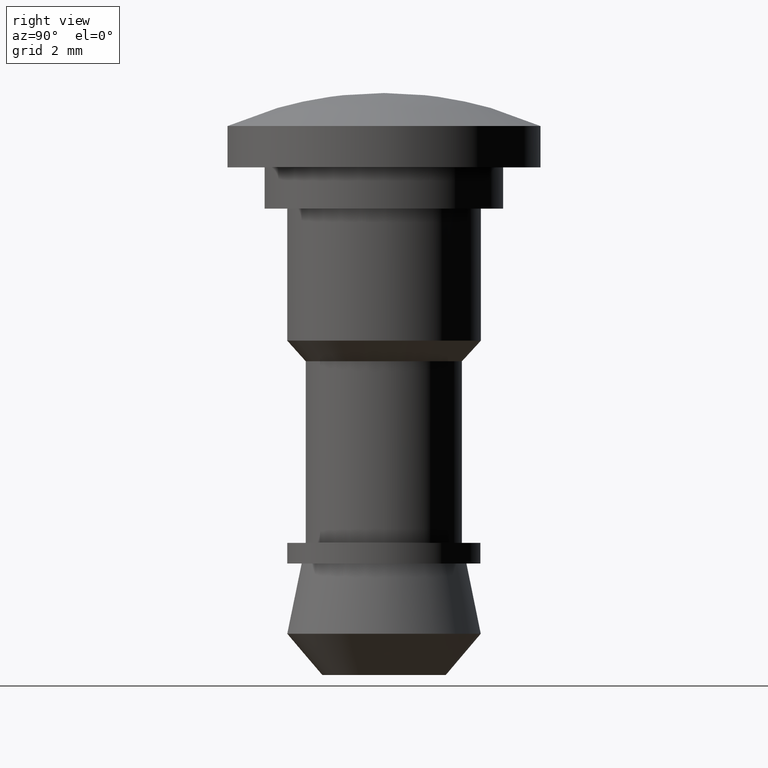
[diagram: clean part render]
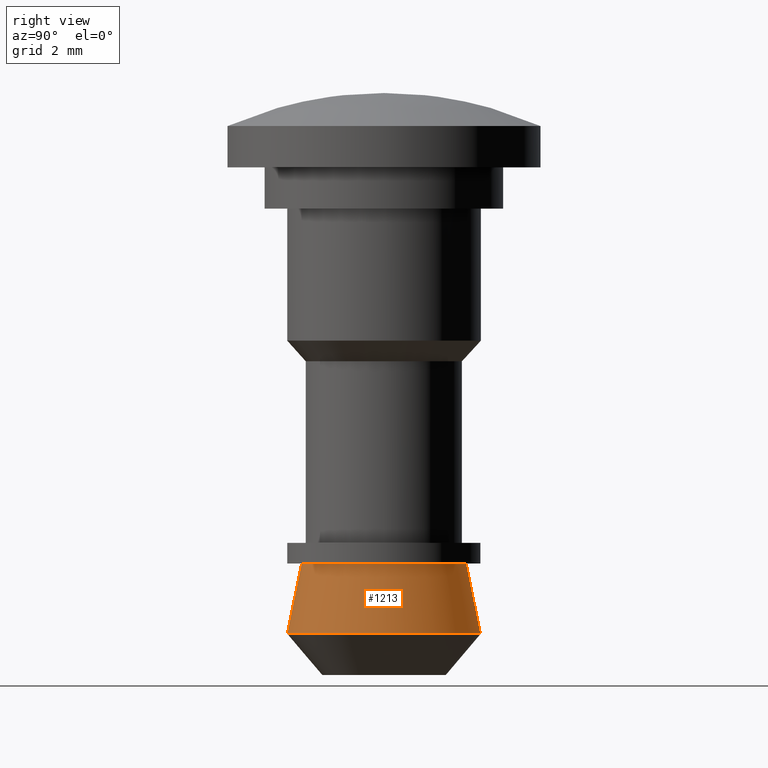
[diagram: same view with one face highlighted and labeled with its STEP entity id]
A machine part, right view. The second image highlights one B-rep face of the part: STEP entity #1213.
In plain terms, the highlighted face is a freeform B-spline surface patch.
Its self-contained STEP definition (entity closure, byte-faithful):
#1104=CARTESIAN_POINT('',(0.227203004284344,1.978246015710509,-8.557502367688132));
#1105=CARTESIAN_POINT('',(1.885626516785236,1.787774860240664,-8.557502367688132));
#1106=CARTESIAN_POINT('',(1.987536403913507,0.121562934107822,-8.557502367688132));
#1107=CARTESIAN_POINT('',(2.109099338021329,-1.865973469805685,-8.557502367688132));
#1108=CARTESIAN_POINT('',(0.121562934107822,-1.987536403913507,-8.557502367688132));
#1109=CARTESIAN_POINT('',(0.269157620662087,2.343542913748280,-10.343465365598895));
#1110=CARTESIAN_POINT('',(2.233820579590927,2.117899933487061,-10.343465365598894));
#1111=CARTESIAN_POINT('',(2.354548836806482,0.144010376131360,-10.343465365598901));
#1112=CARTESIAN_POINT('',(2.498559212937842,-2.210538460675122,-10.343465365598895));
#1113=CARTESIAN_POINT('',(0.144010376131360,-2.354548836806482,-10.343465365598901));
#1121=(BOUNDED_SURFACE()B_SPLINE_SURFACE(2,1,((#1104,#1109),(#1105,#1110),(#1106,#1111),(#1107,#1112),(#1108,#1113)),.UNSPECIFIED.,.F.,.F.,.U.)B_SPLINE_SURFACE_WITH_KNOTS((3,2,3),(2,2),(0.0,3.439422152017951,7.347856415674714),(0.0,1.0),.UNSPECIFIED.)GEOMETRIC_REPRESENTATION_ITEM()RATIONAL_B_SPLINE_SURFACE(((0.938140952186599,0.938140952186599),(0.742253967444162,0.742253967444162),(1.0,1.0),(0.707106781186548,0.707106781186548),(1.0,1.0)))REPRESENTATION_ITEM('')SURFACE());
#1122=CARTESIAN_POINT('',(0.268134337341272,2.334633233307882,-10.299905292479970));
#1123=VERTEX_POINT('',#1122);
#1124=CARTESIAN_POINT('',(2.349980501392775,0.0,-10.299905292479121));
#1125=VERTEX_POINT('',#1124);
#1126=CARTESIAN_POINT('',(0.268134337341272,2.334633233307882,-10.299905292479966));
#1127=CARTESIAN_POINT('',(2.349980501392775,2.095531676072957,-10.299905292479119));
#1128=CARTESIAN_POINT('',(2.349980501392775,0.0,-10.299905292479121));
#1136=(BOUNDED_CURVE()B_SPLINE_CURVE(2,(#1126,#1127,#1128),.UNSPECIFIED.,.F.,.U.)B_SPLINE_CURVE_WITH_KNOTS((3,3),(0.269767755877399,0.500000000000000),.UNSPECIFIED.)CURVE()GEOMETRIC_REPRESENTATION_ITEM()RATIONAL_B_SPLINE_CURVE((0.957343736459105,0.730266147777148,1.0))REPRESENTATION_ITEM(''));
#1137=EDGE_CURVE('',#1123,#1125,#1136,.T.);
#1138=ORIENTED_EDGE('',*,*,#1137,.F.);
#1139=CARTESIAN_POINT('',(0.228201329483346,1.986938386871213,-8.600000000000517));
#1140=VERTEX_POINT('',#1139);
#1141=CARTESIAN_POINT('',(0.228201329483346,1.986938386871213,-8.600000000000517));
#1142=CARTESIAN_POINT('',(0.268134337341272,2.334633233307882,-10.299905292479970));
#1143=QUASI_UNIFORM_CURVE('',1,(#1141,#1142),.UNSPECIFIED.,.F.,.U.);
#1144=EDGE_CURVE('',#1140,#1123,#1143,.T.);
#1145=ORIENTED_EDGE('',*,*,#1144,.F.);
#1146=CARTESIAN_POINT('',(2.0,0.0,-8.600000000000110));
#1147=VERTEX_POINT('',#1146);
#1148=CARTESIAN_POINT('',(0.228201329483346,1.986938386871213,-8.600000000000517));
#1149=CARTESIAN_POINT('',(2.000000000000000,1.783446011433102,-8.600000000000110));
#1150=CARTESIAN_POINT('',(2.0,0.0,-8.600000000000110));
#1158=(BOUNDED_CURVE()B_SPLINE_CURVE(2,(#1148,#1149,#1150),.UNSPECIFIED.,.F.,.U.)B_SPLINE_CURVE_WITH_KNOTS((3,3),(0.269767755877055,0.500000000000000),.UNSPECIFIED.)CURVE()GEOMETRIC_REPRESENTATION_ITEM()RATIONAL_B_SPLINE_CURVE((0.957343736459785,0.730266147776744,1.0))REPRESENTATION_ITEM(''));
#1159=EDGE_CURVE('',#1140,#1147,#1158,.T.);
#1160=ORIENTED_EDGE('',*,*,#1159,.T.);
#1161=CARTESIAN_POINT('',(0.122097079081577,-1.996269596843368,-8.600000000001844));
#1162=VERTEX_POINT('',#1161);
#1163=CARTESIAN_POINT('',(2.0,0.0,-8.600000000000110));
#1164=CARTESIAN_POINT('',(2.0,-1.881412133789037,-8.600000000000110));
#1165=CARTESIAN_POINT('',(0.122097079081577,-1.996269596843368,-8.600000000001844));
#1173=(BOUNDED_CURVE()B_SPLINE_CURVE(2,(#1163,#1164,#1165),.UNSPECIFIED.,.F.,.U.)B_SPLINE_CURVE_WITH_KNOTS((3,3),(0.500000000000000,0.739332962239922),.UNSPECIFIED.)CURVE()GEOMETRIC_REPRESENTATION_ITEM()RATIONAL_B_SPLINE_CURVE((1.0,0.719603993285563,0.976072041668816))REPRESENTATION_ITEM(''));
#1174=EDGE_CURVE('',#1147,#1162,#1173,.T.);
#1175=ORIENTED_EDGE('',*,*,#1174,.T.);
#1176=CARTESIAN_POINT('',(0.143462680237996,-2.345597283272647,-10.299905084747619));
#1177=VERTEX_POINT('',#1176);
#1178=CARTESIAN_POINT('',(0.122097079081577,-1.996269596843368,-8.600000000001844));
#1179=CARTESIAN_POINT('',(0.143462680237996,-2.345597283272647,-10.299905084747619));
#1180=QUASI_UNIFORM_CURVE('',1,(#1178,#1179),.UNSPECIFIED.,.F.,.U.);
#1181=EDGE_CURVE('',#1162,#1177,#1180,.T.);
#1182=ORIENTED_EDGE('',*,*,#1181,.T.);
#1183=CARTESIAN_POINT('',(0.184376767805979,-2.342735731532865,-10.299906007533590));
#1184=VERTEX_POINT('',#1183);
#1185=CARTESIAN_POINT('',(0.184376767805979,-2.342735731532865,-10.299906007533586));
#1186=CARTESIAN_POINT('',(0.163932135565934,-2.344345364010774,-10.299905292479121));
#1187=CARTESIAN_POINT('',(0.143462680237996,-2.345597283272647,-10.299905084747621));
#1195=(BOUNDED_CURVE()B_SPLINE_CURVE(2,(#1185,#1186,#1187),.UNSPECIFIED.,.F.,.U.)B_SPLINE_CURVE_WITH_KNOTS((3,3),(0.736331339386846,0.739332990886489),.UNSPECIFIED.)CURVE()GEOMETRIC_REPRESENTATION_ITEM()RATIONAL_B_SPLINE_CURVE((0.969723437048636,0.972855546983510,0.976072103063870))REPRESENTATION_ITEM(''));
#1196=EDGE_CURVE('',#1184,#1177,#1195,.T.);
#1197=ORIENTED_EDGE('',*,*,#1196,.F.);
#1198=CARTESIAN_POINT('',(2.349980501392775,0.0,-10.299905292479121));
#1199=CARTESIAN_POINT('',(2.349980501392776,-2.172300123681863,-10.299905292479119));
#1200=CARTESIAN_POINT('',(0.184376767805979,-2.342735731532865,-10.299906007533586));
#1208=(BOUNDED_CURVE()B_SPLINE_CURVE(2,(#1198,#1199,#1200),.UNSPECIFIED.,.F.,.U.)B_SPLINE_CURVE_WITH_KNOTS((3,3),(0.500000000000000,0.736331339386846),.UNSPECIFIED.)CURVE()GEOMETRIC_REPRESENTATION_ITEM()RATIONAL_B_SPLINE_CURVE((1.0,0.723120613201969,0.969723437048636))REPRESENTATION_ITEM(''));
#1209=EDGE_CURVE('',#1125,#1184,#1208,.T.);
#1210=ORIENTED_EDGE('',*,*,#1209,.F.);
#1211=EDGE_LOOP('',(#1138,#1145,#1160,#1175,#1182,#1197,#1210));
#1212=FACE_OUTER_BOUND('',#1211,.T.);
#1213=ADVANCED_FACE('',(#1212),#1121,.T.);